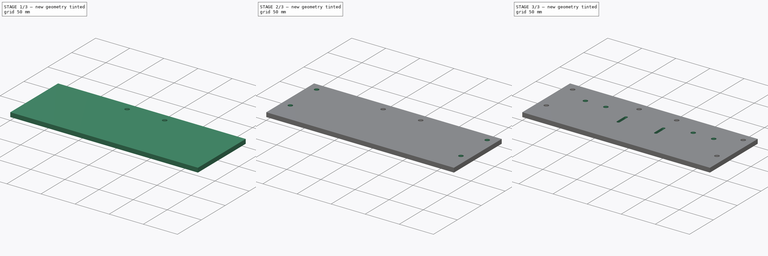
[diagram: build sequence overview — one tinted view per stage of 3, left to right]
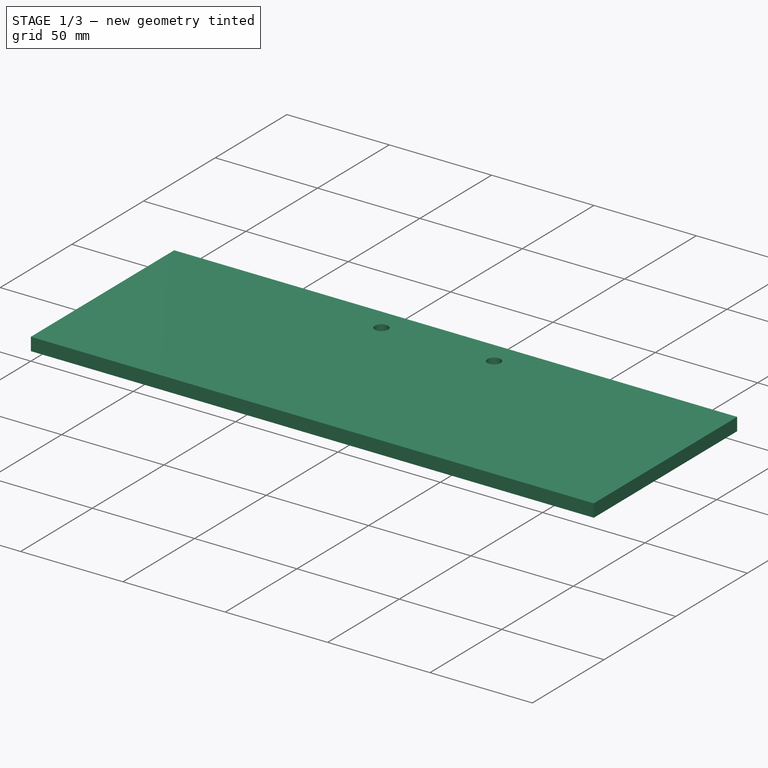
[diagram: stage 1 of 3 — iso view after this stage's code; geometry added in this stage tinted green]
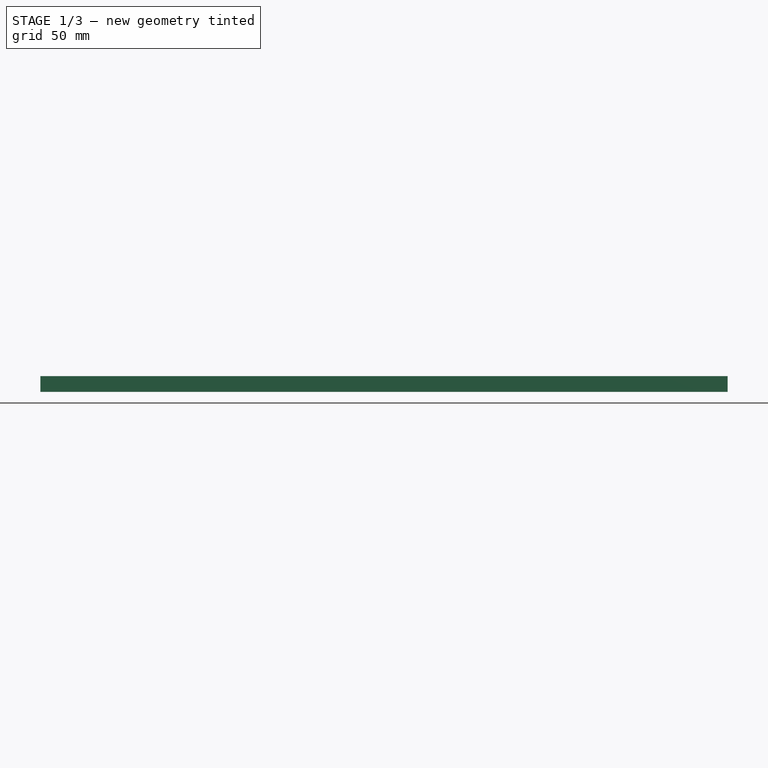
[diagram: stage 1 of 3 — front view after this stage's code; geometry added in this stage tinted green]
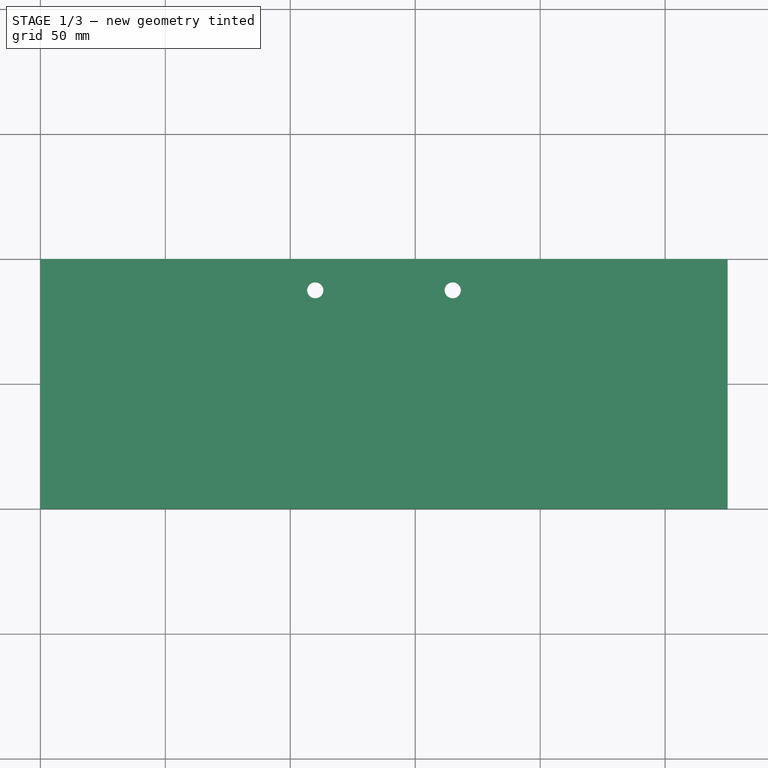
[diagram: stage 1 of 3 — top view after this stage's code; geometry added in this stage tinted green]
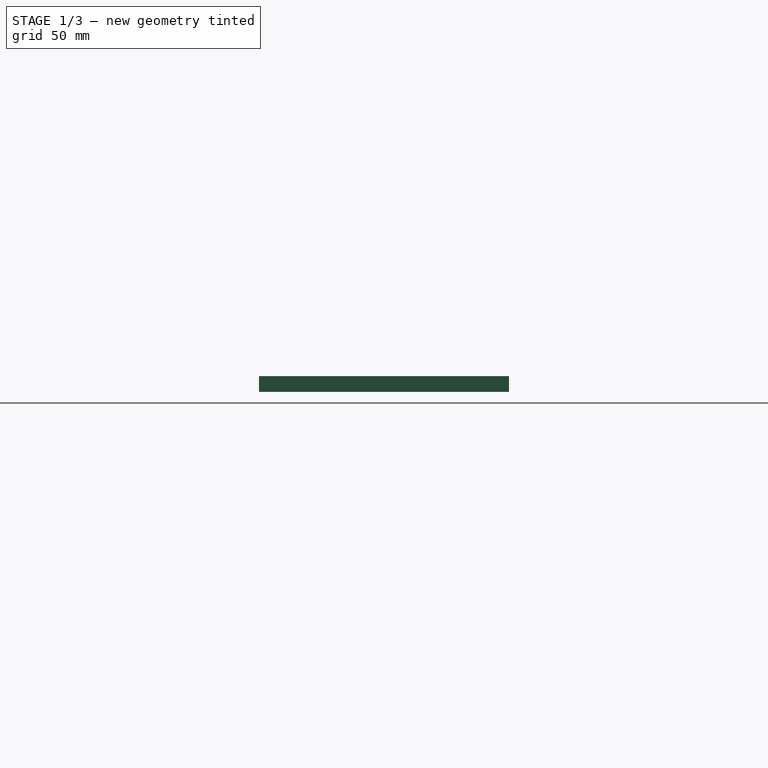
[diagram: stage 1 of 3 — right view after this stage's code; geometry added in this stage tinted green]
FCSTD DOCUMENT  (FreeCAD 0.14R3700 (Git))
Label: zAxisLowerPlate
License: CC-BY 3.0
LicenseURL: http://creativecommons.org/licenses/by/3.0/
objects: Sketcher::SketchObject×7, PartDesign::Pocket×4, PartDesign::Pad×1
note: 17 computed .brp shape members not serialized (recipe doc carries the construction recipe); baked Part::Feature solids carry a one-line shape summary decoded from their .brp

FEATURE [Sketcher::SketchObject] Sketch003
  Placement = pos=(0,0,0) rot=(1,0,0;3.14159rad)
  sketch-geometry (4):
    g0: LineSegment StartX=0 StartY=100 StartZ=0 EndX=275 EndY=100 EndZ=0
    g1: LineSegment StartX=275 StartY=100 StartZ=0 EndX=275 EndY=0 EndZ=0
    g2: LineSegment StartX=275 StartY=0 StartZ=0 EndX=0 EndY=0 EndZ=0
    g3: LineSegment StartX=0 StartY=0 StartZ=0 EndX=0 EndY=100 EndZ=0
  constraints (12):
    c: Coincident(g0,g1)
    c: Coincident(g1,g2)
    c: Coincident(g2,g3)
    c: Coincident(g3,g0)
    c: Horizontal(g0)
    c: Horizontal(g2)
    c: Vertical(g1)
    c: Vertical(g3)
    c: DistanceY(g1) = -100
    c: DistanceX(g0) = 275
    c: PointOnObject(g-1,g3)
    c: PointOnObject(g-1,g2)
FEATURE [PartDesign::Pad] Pad
  Length = 6.35
  Length2 = 100
  Placement = pos=(0,0,0) rot=(1,0,0;3.14159rad)
  Sketch = -> Sketch003
  Type = 0
FEATURE [Sketcher::SketchObject] Sketch  label="Sketch bearing holes"
  Support = -> Pad [Face5]
  sketch-geometry (2):
    g0: Circle CenterX=110 CenterY=-12.5 CenterZ=0 NormalX=0 NormalY=0 NormalZ=1 Radius=3.25
    g1: Circle CenterX=165 CenterY=-12.5 CenterZ=0 NormalX=0 NormalY=0 NormalZ=1 Radius=3.25
  constraints (6):
    c: DistanceY(g0,g1) = 0
    c: Radius(g0) = 3.25
    c: Equal(g1,g0)
    c: DistanceX(g-1,g0) = 110
    c: DistanceX(g1,g0) = -55
    c: DistanceY(g-1,g0) = -12.5
FEATURE [PartDesign::Pocket] Pocket
  Length = 5
  Placement = pos=(0,0,0) rot=(1,0,0;3.14159rad)
  Sketch = -> Sketch
  Type = 1
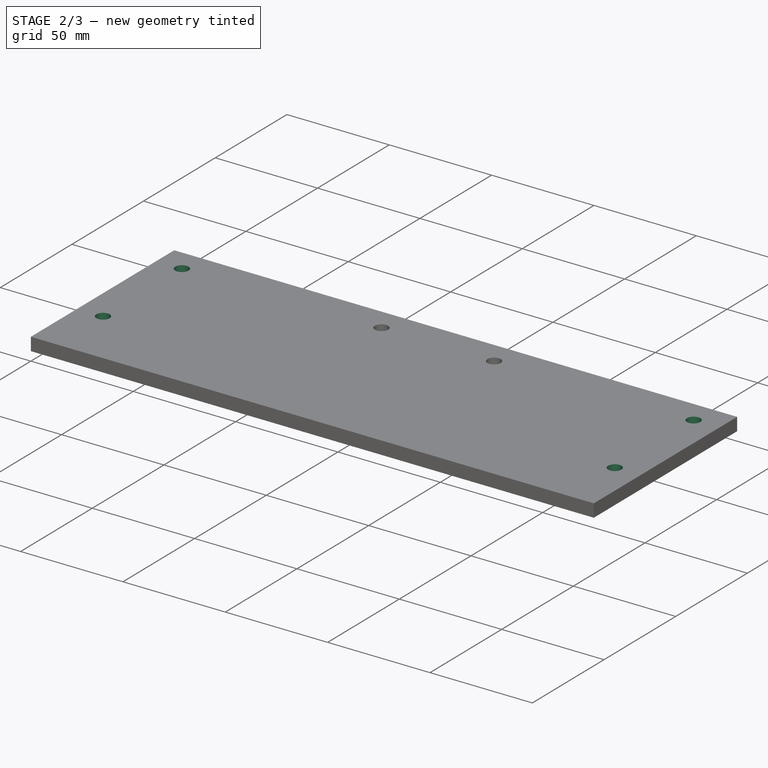
[diagram: stage 2 of 3 — iso view after this stage's code; geometry added in this stage tinted green]
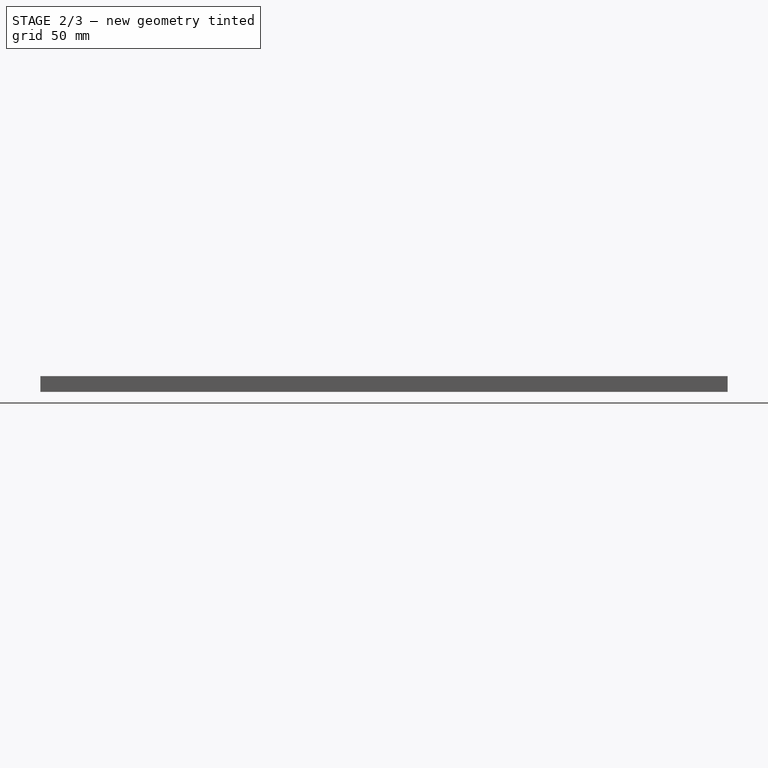
[diagram: stage 2 of 3 — front view after this stage's code; geometry added in this stage tinted green]
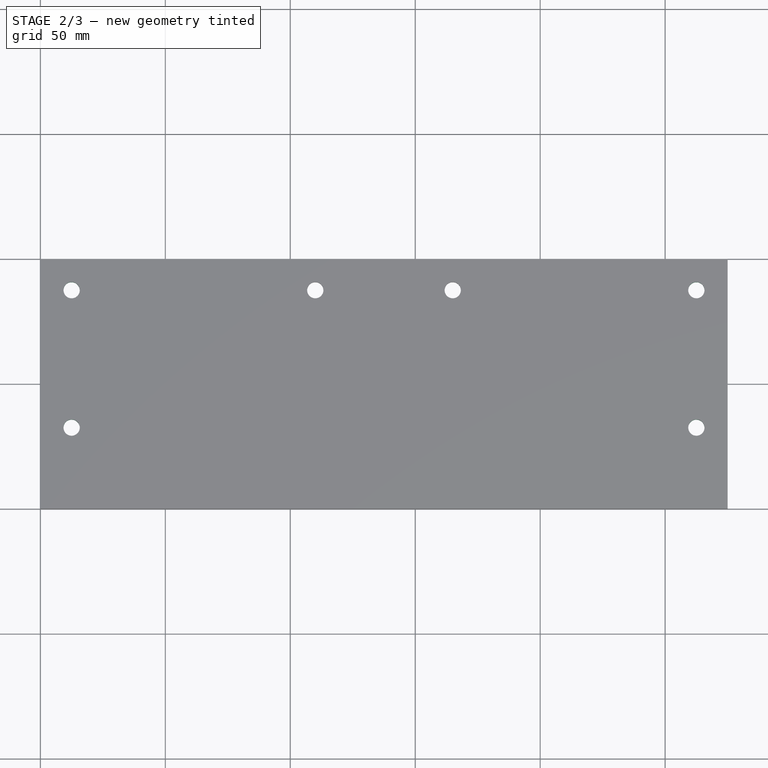
[diagram: stage 2 of 3 — top view after this stage's code; geometry added in this stage tinted green]
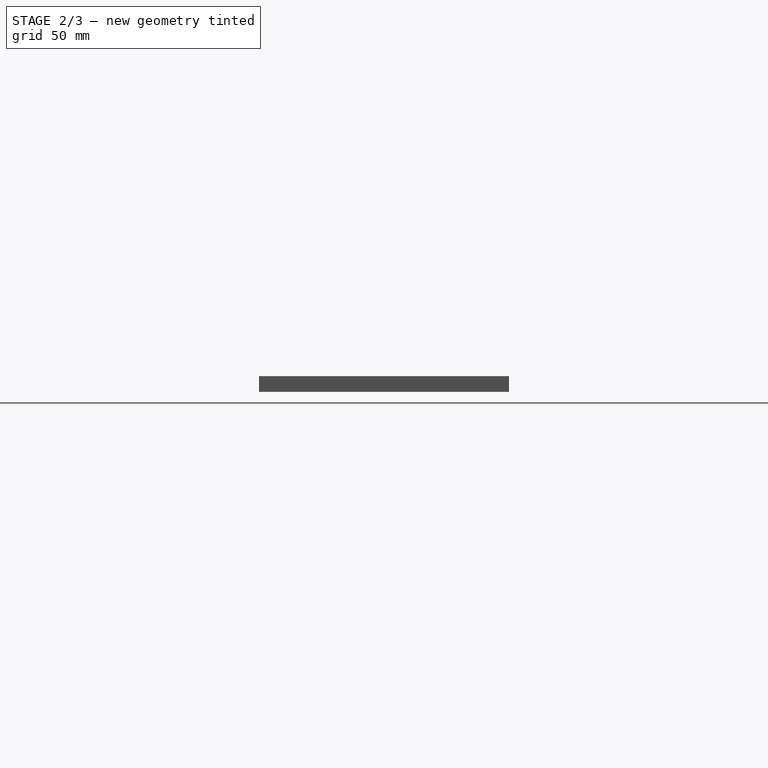
[diagram: stage 2 of 3 — right view after this stage's code; geometry added in this stage tinted green]
FEATURE [Sketcher::SketchObject] Sketch004  label="Sketch004 frame"
  Support = -> Pocket [Face4]
  sketch-geometry (4):
    g0: Circle CenterX=12.5 CenterY=-12.5 CenterZ=0 NormalX=0 NormalY=0 NormalZ=1 Radius=3.25
    g1: Circle CenterX=12.5 CenterY=-67.5 CenterZ=0 NormalX=0 NormalY=0 NormalZ=1 Radius=3.25
    g2: Circle CenterX=262.5 CenterY=-12.5 CenterZ=0 NormalX=0 NormalY=0 NormalZ=1 Radius=3.25
    g3: Circle CenterX=262.5 CenterY=-67.5 CenterZ=0 NormalX=0 NormalY=0 NormalZ=1 Radius=3.25
  constraints (10):
    c: Radius(g0) = 3.25
    c: DistanceX(g-1,g0) = 12.5
    c: DistanceY(g-1,g0) = -12.5
    c: Equal(g1,g0)
    c: Equal(g0,g2)
    c: Equal(g2,g3)
    c: DistanceX(g1,g0) = 0
    c: DistanceX(g3,g2) = 0
    c: DistanceY(g2,g0) = 0
    c: DistanceY(g3,g1) = 0
FEATURE [PartDesign::Pocket] Pocket001  label="Pocket001 frame holes"
  Length = 5
  Placement = pos=(0,0,0) rot=(1,0,0;3.14159rad)
  Sketch = -> Sketch004
  Type = 1
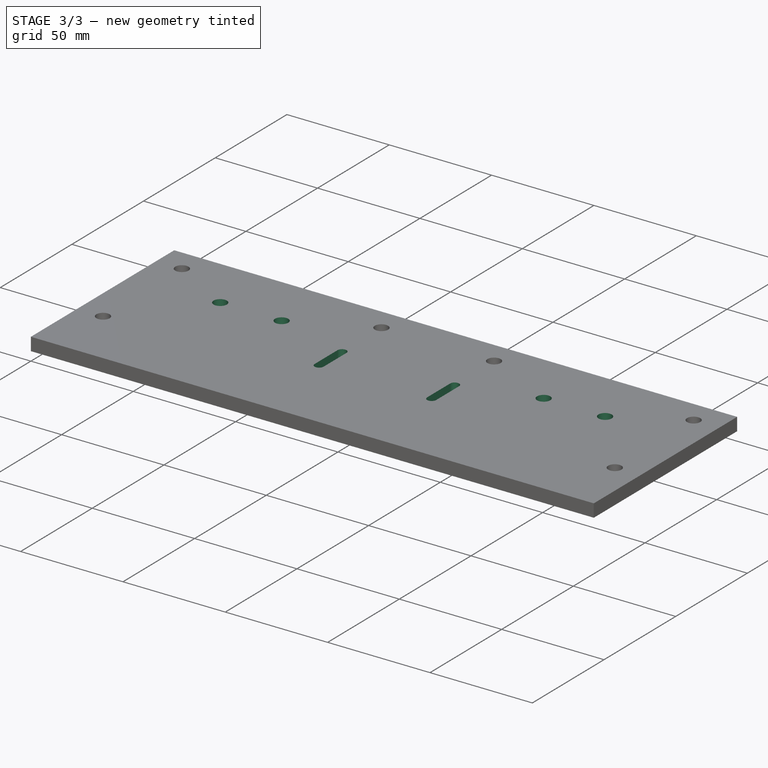
[diagram: stage 3 of 3 — iso view after this stage's code; geometry added in this stage tinted green]
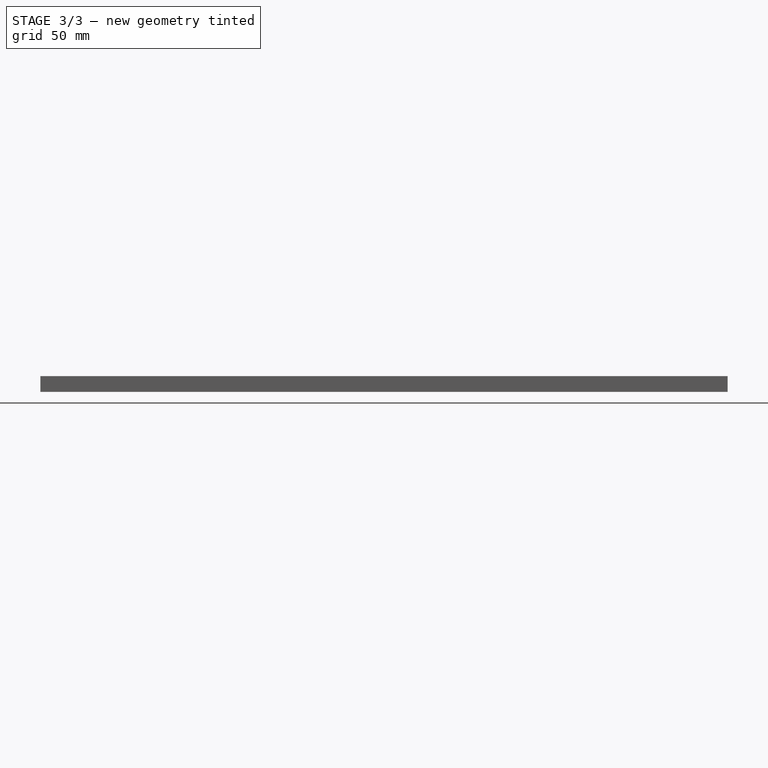
[diagram: stage 3 of 3 — front view after this stage's code; geometry added in this stage tinted green]
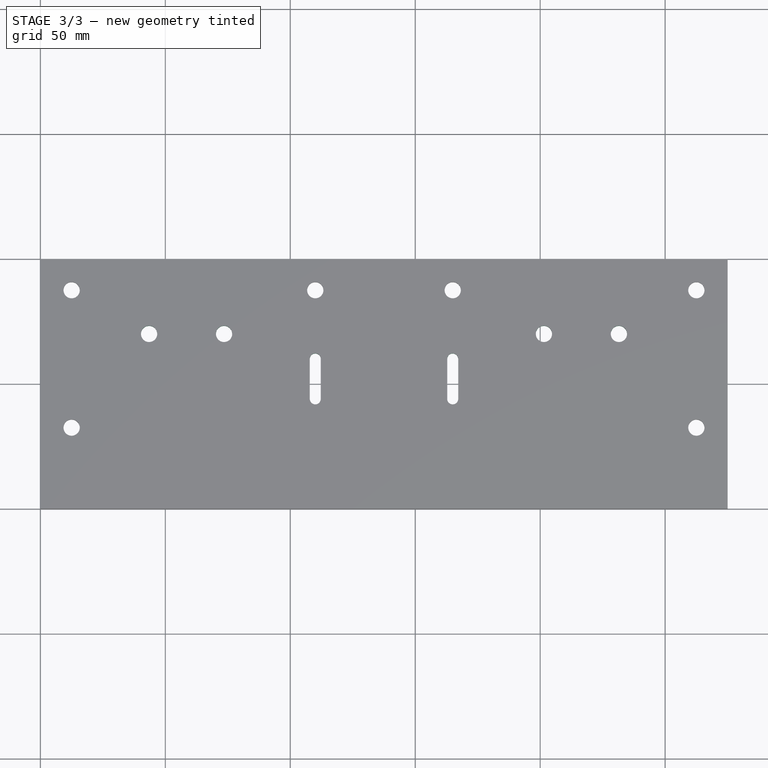
[diagram: stage 3 of 3 — top view after this stage's code; geometry added in this stage tinted green]
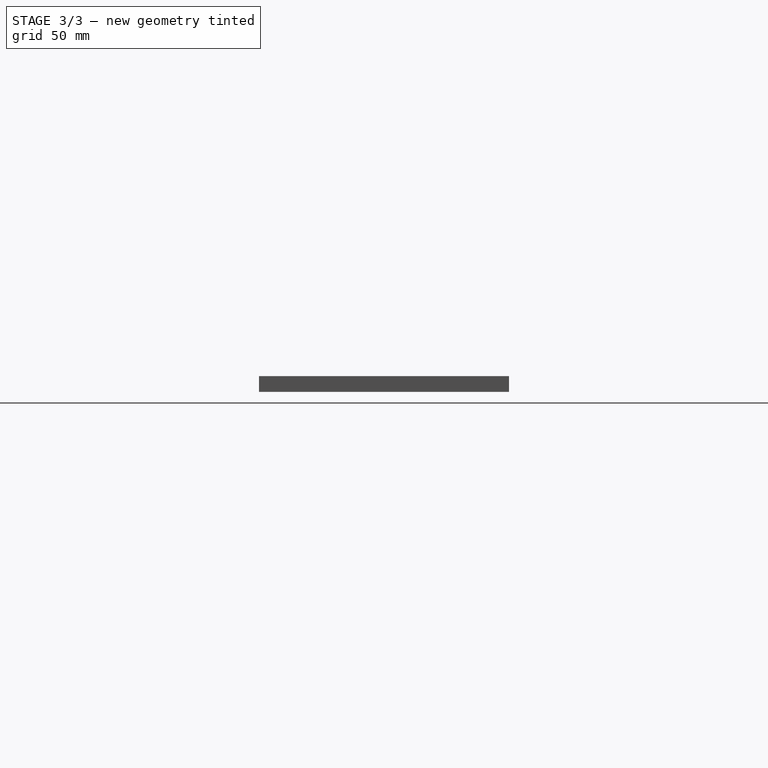
[diagram: stage 3 of 3 — right view after this stage's code; geometry added in this stage tinted green]
FEATURE [Sketcher::SketchObject] Sketch005  label="bearing clip slots"
  Support = -> Pocket001 [Face4]
  sketch-geometry (8):
    g0: ArcOfCircle CenterX=110 CenterY=-40 CenterZ=0 NormalX=0 NormalY=0 NormalZ=1 Radius=2.2 StartAngle=6.59389e-06 EndAngle=3.14159
    g1: ArcOfCircle CenterX=110 CenterY=-56 CenterZ=0 NormalX=0 NormalY=0 NormalZ=1 Radius=2.2 StartAngle=3.14159 EndAngle=6.28319
    g2: LineSegment StartX=107.8 StartY=-40 StartZ=0 EndX=107.8 EndY=-56 EndZ=0
    g3: LineSegment StartX=112.2 StartY=-40 StartZ=0 EndX=112.2 EndY=-56 EndZ=0
    g4: ArcOfCircle CenterX=165 CenterY=-40 CenterZ=0 NormalX=0 NormalY=0 NormalZ=1 Radius=2.2 StartAngle=3.98624e-06 EndAngle=3.14159
    g5: ArcOfCircle CenterX=165 CenterY=-56 CenterZ=0 NormalX=0 NormalY=0 NormalZ=1 Radius=2.2 StartAngle=3.14159 EndAngle=6.28319
    g6: LineSegment StartX=162.8 StartY=-40 StartZ=0 EndX=162.8 EndY=-56 EndZ=0
    g7: LineSegment StartX=167.2 StartY=-40 StartZ=0 EndX=167.2 EndY=-56 EndZ=0
  constraints (28):
    c: Tangent(g0,g2)
    c: Tangent(g0,g3)
    c: Tangent(g1,g2)
    c: Tangent(g1,g3)
    c: Coincident(g0,g3)
    c: Coincident(g0,g2)
    c: Coincident(g2,g1)
    c: Coincident(g3,g1)
    c: Vertical(g2)
    c: Equal(g0,g1)
    c: Radius(g1) = 2.2
    c: DistanceY(g0,g1) = -16
    c: Tangent(g4,g6)
    c: Tangent(g4,g7)
    c: Tangent(g5,g6)
    c: Tangent(g5,g7)
    c: Coincident(g4,g7)
    c: Coincident(g4,g6)
    c: Coincident(g6,g5)
    c: Coincident(g7,g5)
    c: Vertical(g6)
    c: Equal(g4,g5)
    c: Equal(g4,g0)
    c: DistanceY(g0,g4) = 0
    c: DistanceY(g5,g1) = 0
    c: DistanceX(g4,g0) = -55
    c: DistanceY(g-1,g0) = -40
    c: DistanceX(g-1,g0) = 110
FEATURE [PartDesign::Pocket] Pocket002
  Length = 5
  Placement = pos=(0,0,0) rot=(1,0,0;3.14159rad)
  Sketch = -> Sketch005
  Type = 1
FEATURE [Sketcher::SketchObject] Sketch006
  sketch-geometry (4):
    g0: Circle CenterX=43.5 CenterY=-30 CenterZ=0 NormalX=0 NormalY=0 NormalZ=1 Radius=3.25
    g1: Circle CenterX=73.5 CenterY=-30 CenterZ=0 NormalX=0 NormalY=0 NormalZ=1 Radius=3.25
    g2: Circle CenterX=201.5 CenterY=-30 CenterZ=0 NormalX=0 NormalY=0 NormalZ=1 Radius=3.25
    g3: Circle CenterX=231.5 CenterY=-30 CenterZ=0 NormalX=0 NormalY=0 NormalZ=1 Radius=3.25
  constraints (12):
    c: Radius(g0) = 3.25
    c: Equal(g0,g1)
    c: DistanceX(g0,g1) = 30
    c: DistanceY(g0,g1) = 0
    c: DistanceX(g0) = 43.5
    c: DistanceY(g-1,g0) = -30
    c: Equal(g0,g2)
    c: Equal(g2,g3)
    c: DistanceY(g3,g0) = 0
    c: DistanceY(g2,g0) = 0
    c: DistanceX(g2,g3) = 30
    c: DistanceX(g-1,g3) = 231.5
FEATURE [Sketcher::SketchObject] Sketch007
  Support = -> Pocket002 [Face4]
  sketch-geometry (4):
    g0: Circle CenterX=43.5 CenterY=-30 CenterZ=0 NormalX=0 NormalY=0 NormalZ=1 Radius=3.25
    g1: Circle CenterX=73.5 CenterY=-30 CenterZ=0 NormalX=0 NormalY=0 NormalZ=1 Radius=3.25
    g2: Circle CenterX=201.5 CenterY=-30 CenterZ=0 NormalX=0 NormalY=0 NormalZ=1 Radius=3.25
    g3: Circle CenterX=231.5 CenterY=-30 CenterZ=0 NormalX=0 NormalY=0 NormalZ=1 Radius=3.25
  constraints (11):
    c: Radius(g0) = 3.25
    c: Equal(g0,g1)
    c: Equal(g1,g2)
    c: Equal(g3,g0)
    c: DistanceY(g0,g1) = 0
    c: DistanceX(g0,g1) = 30
    c: DistanceX(g-1,g0) = 43.5
    c: DistanceX(g2,g3) = 30
    c: DistanceY(g2,g3) = 0
    c: DistanceY(g2,g0) = 0
    c: DistanceY(g-1,g0) = -30
FEATURE [PartDesign::Pocket] Pocket003
  Length = 5
  Placement = pos=(0,0,0) rot=(1,0,0;3.14159rad)
  Sketch = -> Sketch007
  Type = 1
FEATURE [Sketcher::SketchObject] Sketch008
  Support = -> Pocket003 [Face4]
  sketch-geometry (2):
    g0: Circle CenterX=110.514 CenterY=-90.8165 CenterZ=0 NormalX=0 NormalY=0 NormalZ=1 Radius=3.25
    g1: Circle CenterX=166.201 CenterY=-89.6643 CenterZ=0 NormalX=0 NormalY=0 NormalZ=1 Radius=3.41892
  constraints (1):
    c: Radius(g0) = 3.25
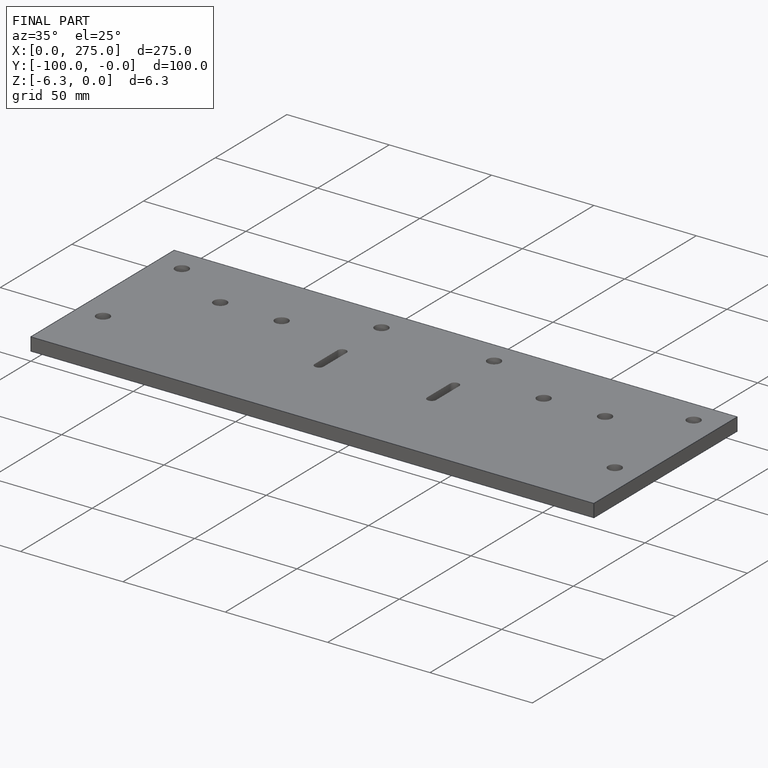
[diagram: finished part — iso view with bounding-box wireframe]
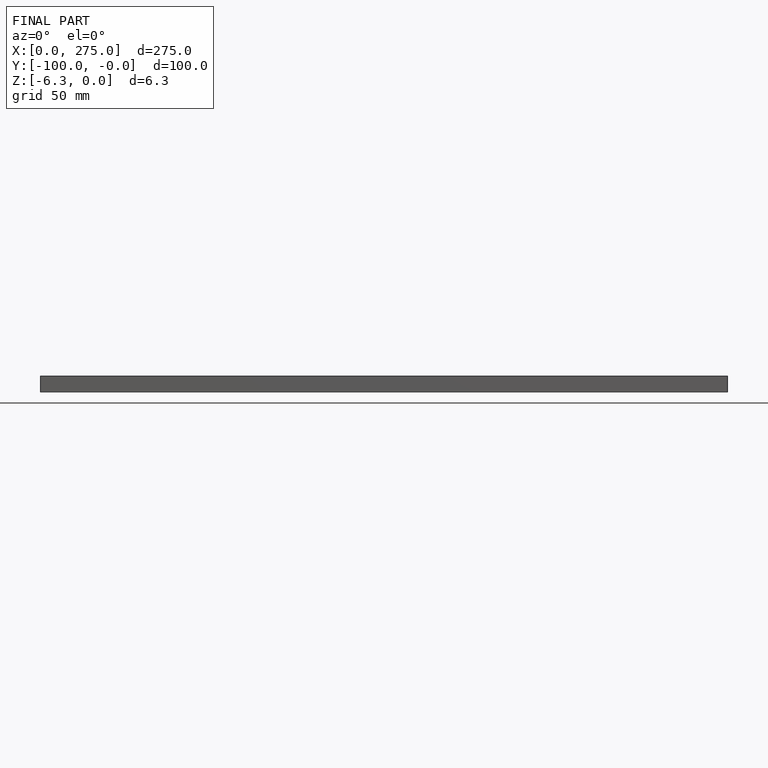
[diagram: finished part — front view with bounding-box wireframe]
